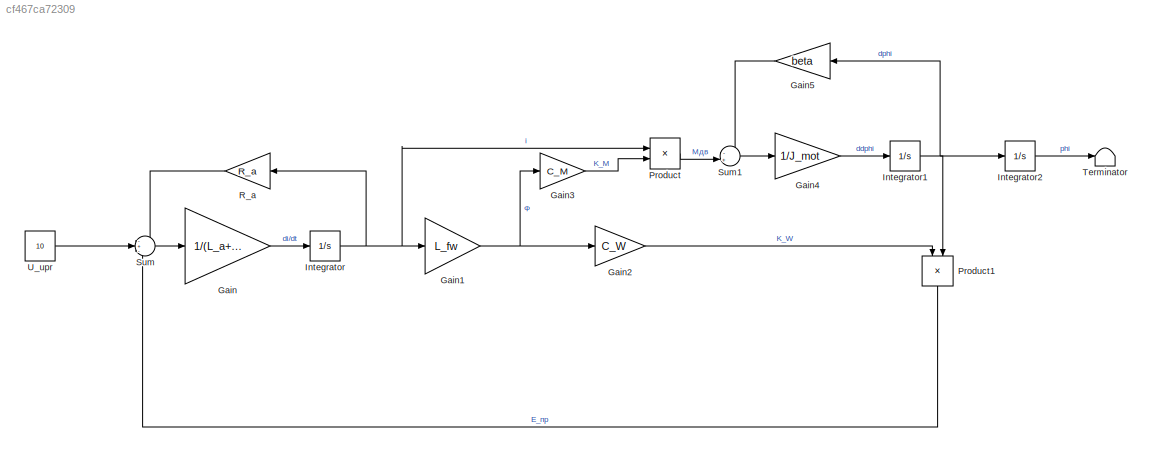
MODEL slx_cf467ca72309
KIND model
CONFIG AbsTol = auto
CONFIG EnableMultiTasking = off
CONFIG FixedStep = auto
CONFIG MaxStep = auto
CONFIG MinStep = auto
CONFIG RelTol = 1e-3
CONFIG SampleTimeConstraint = Unconstrained
CONFIG SolverName = VariableStepAuto
CONFIG StartTime = 0.0
CONFIG StopTime = 10.0
BLOCK [Gain] Gain
  Gain = 1/(L_a+L_fw)
BLOCK [Gain] Gain1
  Gain = L_fw
BLOCK [Gain] Gain2
  Gain = C_W
BLOCK [Gain] Gain3
  Gain = C_M
BLOCK [Gain] Gain4
  Gain = 1/J_mot
BLOCK [Gain] Gain5
  Gain = beta
  NameLocation = top
BLOCK [Integrator] Integrator
BLOCK [Integrator] Integrator1
BLOCK [Integrator] Integrator2
BLOCK [Product] Product
BLOCK [Product] Product1
  NameLocation = left
BLOCK [Gain] R_a
  Gain = R_a
  NameLocation = top
BLOCK [Sum] Sum
  Inputs = -+-
BLOCK [Sum] Sum1
  Inputs = -+|
BLOCK [Terminator] Terminator
BLOCK [Constant] U_upr
  Value = 10
NET Gain1:1 -> Gain2:1, Gain3:1
LINE Gain2:1 -> Product1:1
LINE Gain3:1 -> Product:2
LINE Gain4:1 -> Integrator1:1
LINE Gain5:1 -> Sum1:1
LINE Gain:1 -> Integrator:1
NET Integrator1:1 -> Gain5:1, Integrator2:1, Product1:2
LINE Integrator2:1 -> Terminator:1
NET Integrator:1 -> Gain1:1, Product:1, R_a:1
LINE Product1:1 -> Sum:3
LINE Product:1 -> Sum1:2
LINE R_a:1 -> Sum:1
LINE Sum1:1 -> Gain4:1
LINE Sum:1 -> Gain:1
LINE U_upr:1 -> Sum:2
note: NET lines group one-source signal fan-out (src -> all destinations, sorted); 1:1 wires keep LINE
